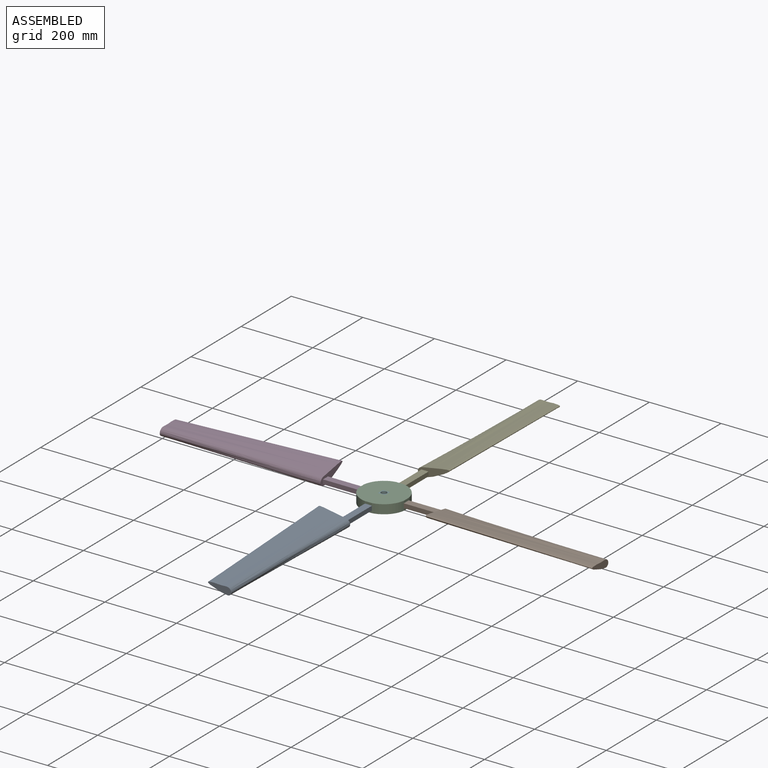
[diagram: assembled view]
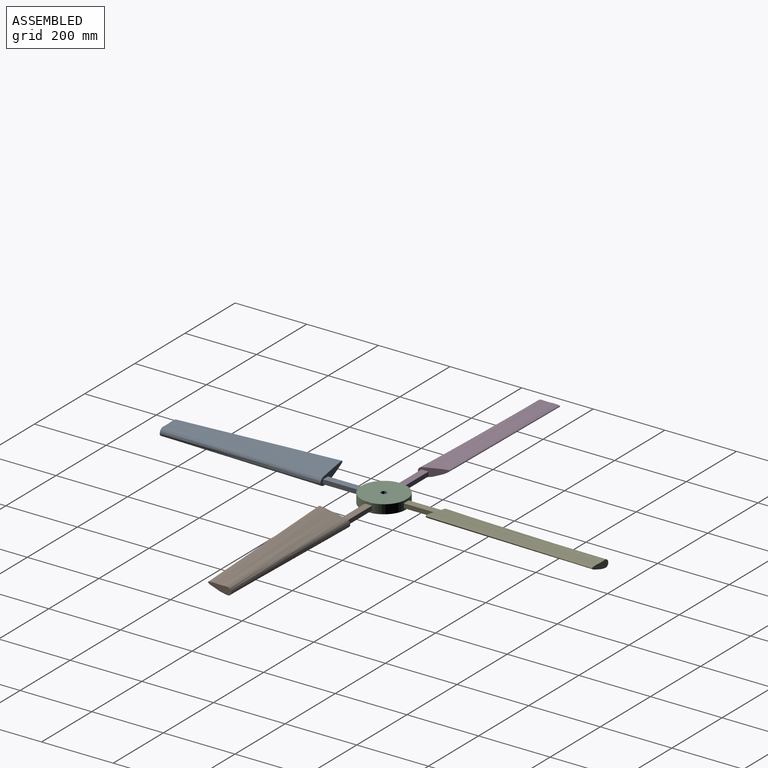
[diagram: assembled view, second angle]
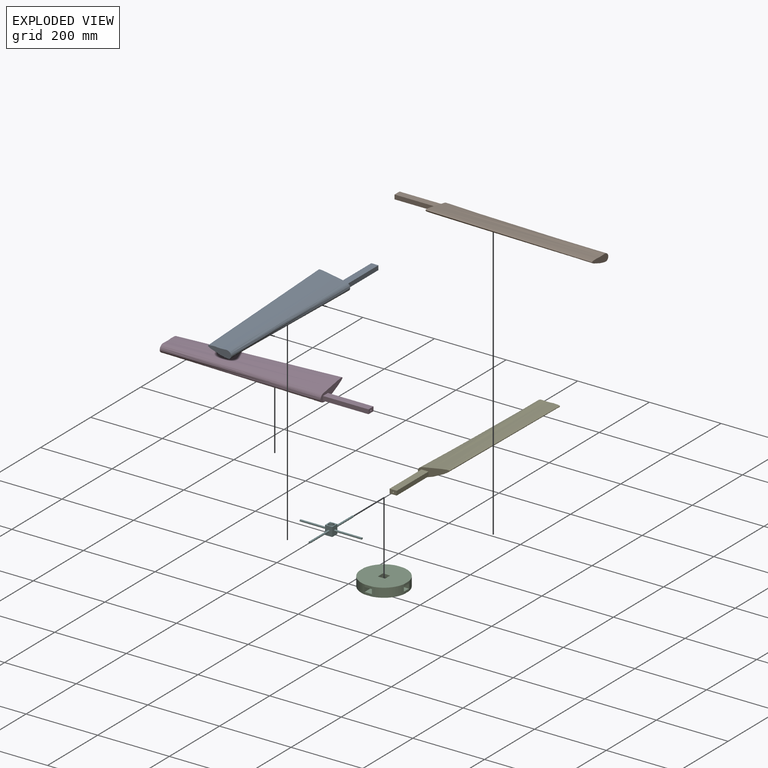
[diagram: exploded view]
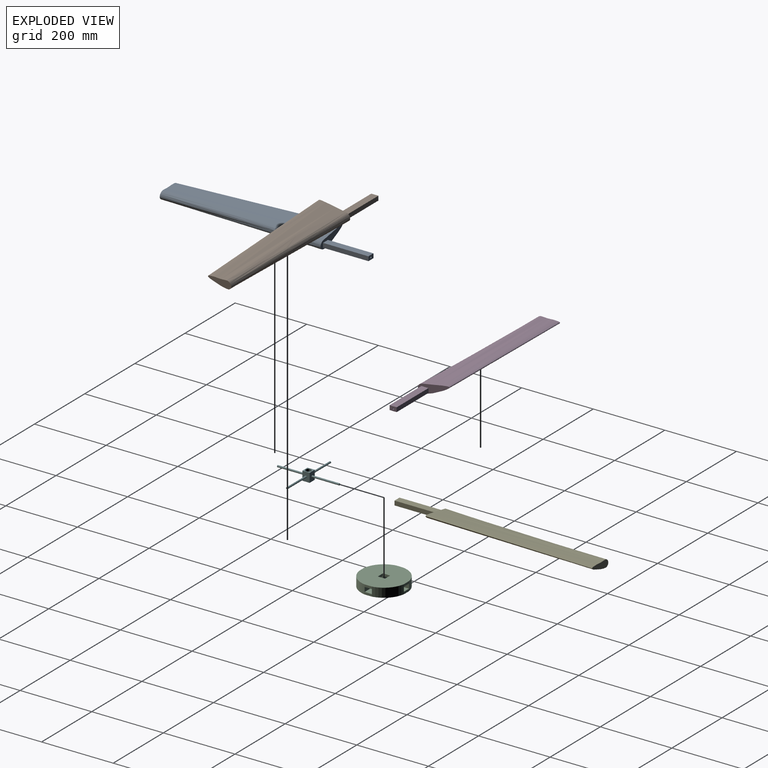
[diagram: exploded view, second angle]
ASSEMBLY  parts=6 mates=5
PART A: 15 faces, bbox 100.4x584.2x26.2 mm
  f0: plane 100.22x25.98mm, normal (0,1,0), area 1334.7mm2, adj f2,f3,f4,f5,f6,f7,f8,f9
  f1: plane 71.76x23.58mm, normal (0,-1,0), area 949.6mm2, adj f2,f3,f4,f5,f6,f7
  f2: bspline ~457.2x37.29mm, area 16164.1mm2, adj f0,f1,f3,f7
  f3: bspline ~457.2x57.96mm, area 25241mm2, adj f0,f1,f2,f4
  f4: bspline ~457.2x20.69mm, area 6502.5mm2, adj f0,f1,f3,f5
  f5: bspline ~457.2x22.03mm, area 6243.1mm2, adj f0,f1,f4,f6
  f6: bspline ~457.2x28.98mm, area 9715.2mm2, adj f0,f1,f5,f7
  f7: bspline ~457.2x44.39mm, area 14047.7mm2, adj f0,f1,f2,f6
  f8: plane 127x12.01mm, normal (0.98,0,0.17), area 1548.4mm2, adj f0,f9,f11,f12
  f9: plane 127x19.51mm, normal (-0.17,0,0.98), area 2516.1mm2, adj f0,f8,f10,f12
  f10: plane 127x12.01mm, normal (-0.98,0,-0.17), area 1548.4mm2, adj f0,f9,f11,f12
  f11: plane 127x19.51mm, normal (0.17,0,-0.98), area 2516.1mm2, adj f0,f8,f10,f12
  f12: plane 21.63x15.45mm, normal (0,1,0), area 223.7mm2, adj f8,f9,f10,f11,f14
  f13: cone r=0mm half-angle=59deg, axis (0,1,0), area 20.8mm2, adj f14
  f14: cylinder r=2.38mm len=152.4mm, axis (0,1,0), area 2280.2mm2, adj f12,f13
PART B: same geometry as A
PART C: 38 faces, bbox 125.4x125.4x25.4 mm
  f0: plane 20.32x6.35mm, normal (-1,0,0), area 129mm2, adj f1,f3,f9,f26
  f1: plane 52.52x20.32mm, normal (0,0,-1), area 1067.2mm2, adj f0,f2,f8,f20
  f2: plane 20.32x6.35mm, normal (1,0,0), area 129mm2, adj f1,f3,f4,f5
  f3: plane 125.36x125.36mm, normal (0,0,1), area 12210.4mm2, adj f0,f2,f4,f5,f9,f11,f14,f17
  f4: plane 20.32x6.35mm, normal (0,1,0), area 129mm2, adj f2,f3,f12,f14
  f5: plane 20.32x6.35mm, normal (0,-1,0), area 129mm2, adj f2,f3,f14,f24
  f6: plane 52.52x12.7mm, normal (1,0,0), area 667mm2, adj f8,f9,f12,f35
  f7: plane 20.32x6.35mm, normal (1,0,0), area 129mm2, adj f10,f19,f29,f37
  f8: plane 52.52x12.7mm, normal (0,1,0), area 667mm2, adj f1,f6,f9,f29
  f9: cylinder r=63.5mm len=52.52mm, axis (0,0,-1), area 2015.2mm2, adj f0,f3,f6,f8,f10,f11,f30,f36
  f10: plane 125.36x125.36mm, normal (0,0,-1), area 12210.4mm2, adj f7,f9,f15,f17,f19,f22,f26,f28
  f11: plane 20.32x6.35mm, normal (0,-1,0), area 129mm2, adj f3,f9,f12,f17
  f12: plane 52.52x20.32mm, normal (0,0,-1), area 1067.2mm2, adj f4,f6,f11,f13
  f13: plane 52.52x12.7mm, normal (-1,0,0), area 667mm2, adj f12,f16,f17,f35
  f14: plane 20.32x6.35mm, normal (-1,0,0), area 129mm2, adj f3,f4,f5,f32
  f15: plane 20.32x6.35mm, normal (-1,0,0), area 129mm2, adj f10,f19,f33,f37
  f16: plane 52.52x12.7mm, normal (0,1,0), area 667mm2, adj f13,f17,f32,f33
  f17: cylinder r=63.5mm len=52.52mm, axis (0,0,-1), area 2015.2mm2, adj f3,f10,f11,f13,f16,f31,f34,f36
  f18: plane 52.52x12.7mm, normal (0,-1,0), area 667mm2, adj f21,f22,f32,f33
  f19: plane 20.32x6.35mm, normal (0,-1,0), area 129mm2, adj f7,f10,f15,f27
  f20: plane 52.52x12.7mm, normal (0,-1,0), area 667mm2, adj f1,f25,f26,f29
  f21: plane 52.52x12.7mm, normal (-1,0,0), area 667mm2, adj f18,f22,f24,f27
  f22: cylinder r=63.5mm len=52.52mm, axis (0,0,-1), area 2015.2mm2, adj f3,f10,f18,f21,f23,f28,f31,f34
  f23: plane 20.32x6.35mm, normal (0,1,0), area 129mm2, adj f3,f22,f24,f26
  f24: plane 52.52x20.32mm, normal (0,0,-1), area 1067.2mm2, adj f5,f21,f23,f25
  f25: plane 52.52x12.7mm, normal (1,0,0), area 667mm2, adj f20,f24,f26,f27
  f26: cylinder r=63.5mm len=52.52mm, axis (0,0,-1), area 2015.2mm2, adj f0,f3,f10,f20,f23,f25,f28,f30
  f27: plane 52.52x20.32mm, normal (0,0,1), area 1067.2mm2, adj f19,f21,f25,f28
  f28: plane 20.32x6.35mm, normal (0,1,0), area 129mm2, adj f10,f22,f26,f27
  f29: plane 52.52x20.32mm, normal (0,0,1), area 1067.2mm2, adj f7,f8,f20,f30
  f30: plane 20.32x6.35mm, normal (-1,0,0), area 129mm2, adj f9,f10,f26,f29
  f31: plane 20.32x6.35mm, normal (1,0,0), area 129mm2, adj f3,f17,f22,f32
  f32: plane 52.52x20.32mm, normal (0,0,-1), area 1067.2mm2, adj f14,f16,f18,f31
  f33: plane 52.52x20.32mm, normal (0,0,1), area 1067.2mm2, adj f15,f16,f18,f34
  f34: plane 20.32x6.35mm, normal (1,0,0), area 129mm2, adj f10,f17,f22,f33
  f35: plane 52.52x20.32mm, normal (0,0,1), area 1067.2mm2, adj f6,f13,f36,f37
  f36: plane 20.32x6.35mm, normal (0,-1,0), area 129mm2, adj f9,f10,f17,f35
  f37: plane 20.32x6.35mm, normal (0,1,0), area 129mm2, adj f7,f10,f15,f35
PART D: same geometry as A
PART E: same geometry as A
PART F: 15 faces, bbox 172.7x172.7x25.4 mm
  f0: plane 25.4x20.32mm, normal (0,1,0), area 495.9mm2, adj f1,f3,f5,f6,f13
  f1: plane 25.4x20.32mm, normal (-1,0,0), area 495.9mm2, adj f0,f2,f5,f6,f7
  f2: plane 25.4x20.32mm, normal (0,-1,0), area 495.9mm2, adj f1,f3,f5,f6,f9
  f3: plane 25.4x20.32mm, normal (1,0,0), area 495.9mm2, adj f0,f2,f5,f6,f11
  f4: cylinder r=7.94mm len=25.4mm, axis (0,0,-1), area 1266.8mm2, adj f5,f6
  f5: plane 20.32x20.32mm, normal (0,0,1), area 215mm2, adj f0,f1,f2,f3,f4
  f6: plane 20.32x20.32mm, normal (0,0,-1), area 215mm2, adj f0,f1,f2,f3,f4
  f7: cylinder r=2.54mm len=76.2mm, axis (1,0,0), area 1216.1mm2, adj f1,f8
  f8: plane 5.08x5.08mm, normal (-1,0,0), area 20.3mm2, adj f7
  f9: cylinder r=2.54mm len=76.2mm, axis (0,1,0), area 1216.1mm2, adj f2,f10
  f10: plane 5.08x5.08mm, normal (0,-1,0), area 20.3mm2, adj f9
  f11: cylinder r=2.54mm len=76.2mm, axis (-1,0,0), area 1216.1mm2, adj f3,f12
  f12: plane 5.08x5.08mm, normal (1,0,0), area 20.3mm2, adj f11
  f13: cylinder r=2.54mm len=76.2mm, axis (0,-1,0), area 1216.1mm2, adj f0,f14
  f14: plane 5.08x5.08mm, normal (0,1,0), area 20.3mm2, adj f13
PLACE A rot(axis=(0,-1,0),170deg) t=(525.1,-373.08,-45.89)mm
PLACE B rot(axis=(0.71,-0.71,0.06),172.9deg) t=(669.5,-190.65,-45.89)mm
PLACE C rot(axis=(-1,0,0),180deg) t=(506.08,-209.66,-37.25)mm
PLACE D rot(axis=(-0.71,-0.71,-0.06),172.9deg) t=(342.66,-228.67,-45.89)mm
PLACE E rot(axis=(-1,0,-0.09),180deg) t=(487.07,-46.24,-45.89)mm
PLACE F rot(axis=(1,0,0),180deg) t=(506.08,-209.66,-37.25)mm
MATE fastened F.f2 <-> C.f4  axis (0,1,0) through (495.92,-199.5,-62.65)mm
MATE fastened C.f1 <-> D.f9  axis (0,0,-1) through (469.66,-209.66,-56.3)mm
MATE fastened C.f12 <-> E.f9  axis (0,0,1) through (506.08,-173.24,-56.3)mm
MATE fastened C.f32 <-> B.f9  axis (0,0,1) through (542.5,-209.66,-56.3)mm
MATE fastened A.f9 <-> C.f24  axis (0,0,1) through (506.08,-246.08,-56.3)mm
